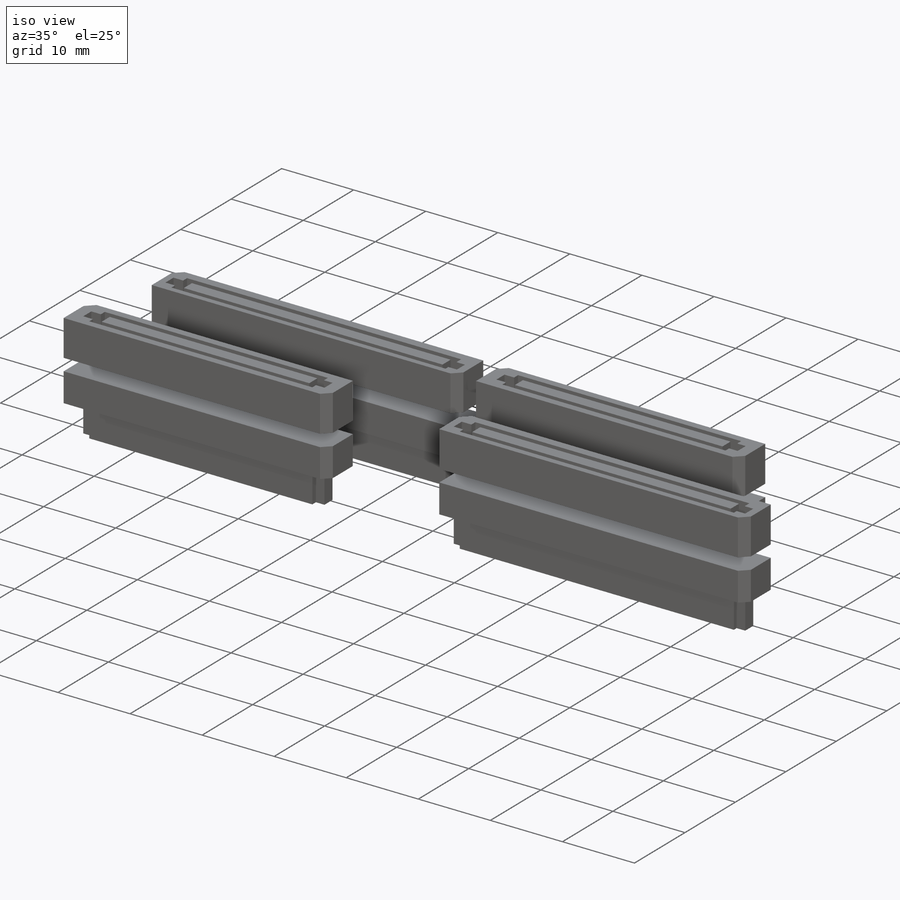
[diagram: iso view]
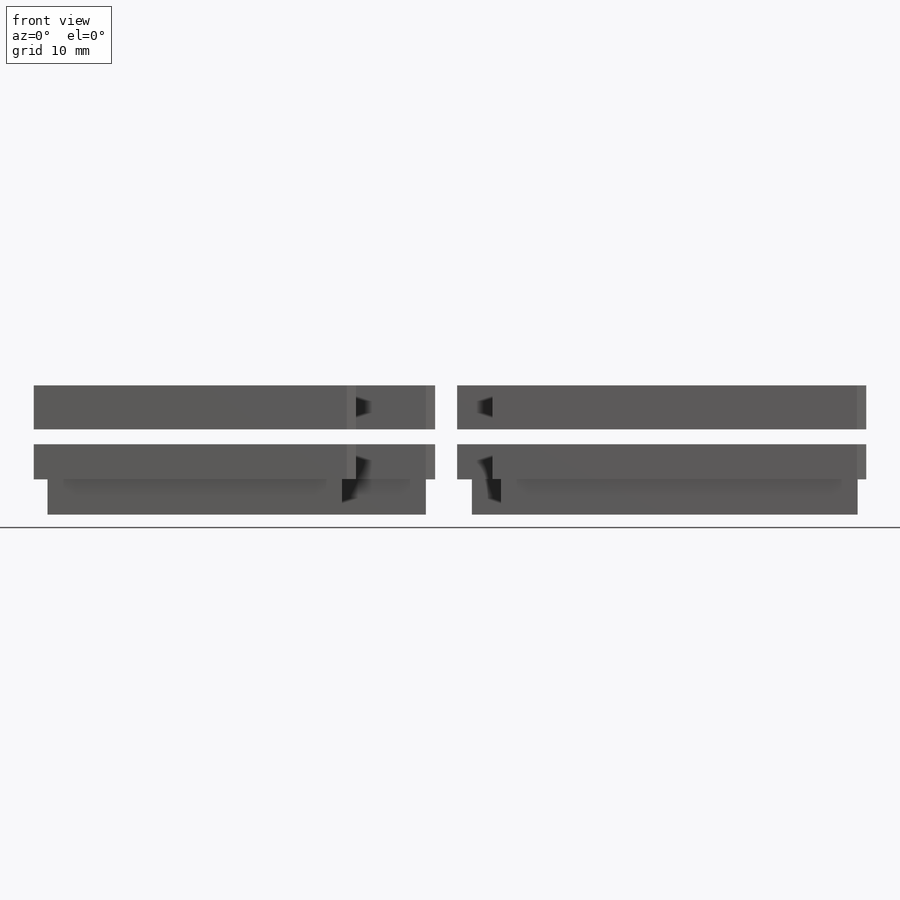
[diagram: front view]
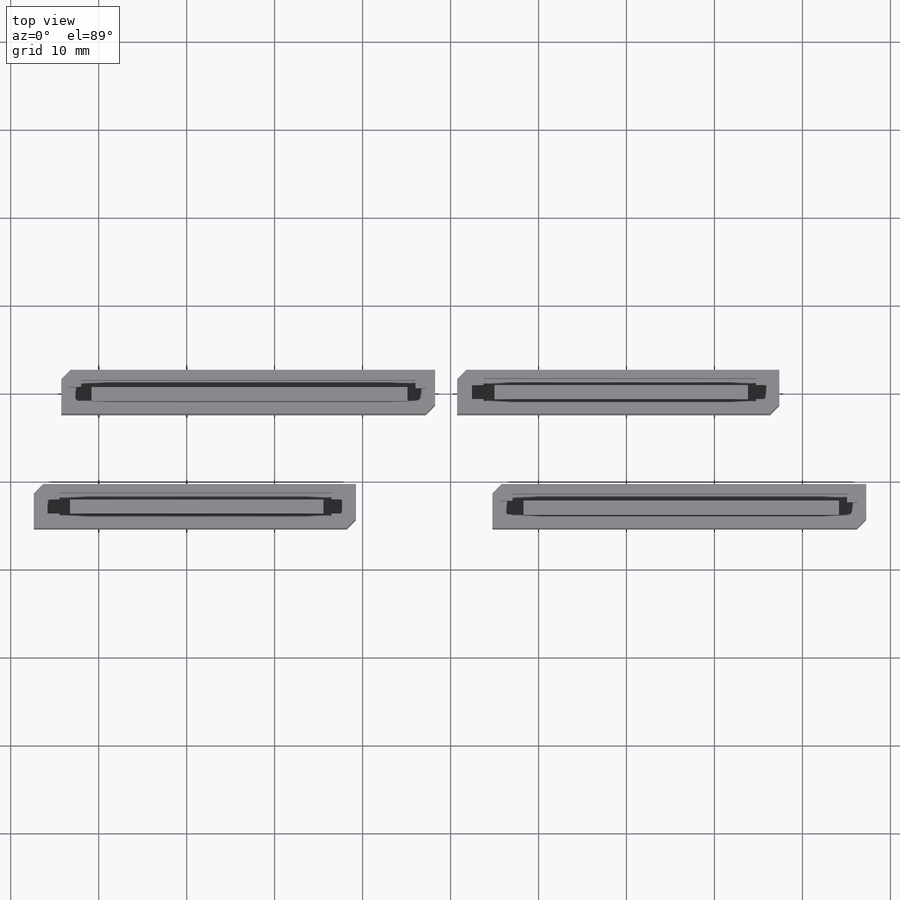
[diagram: top view]
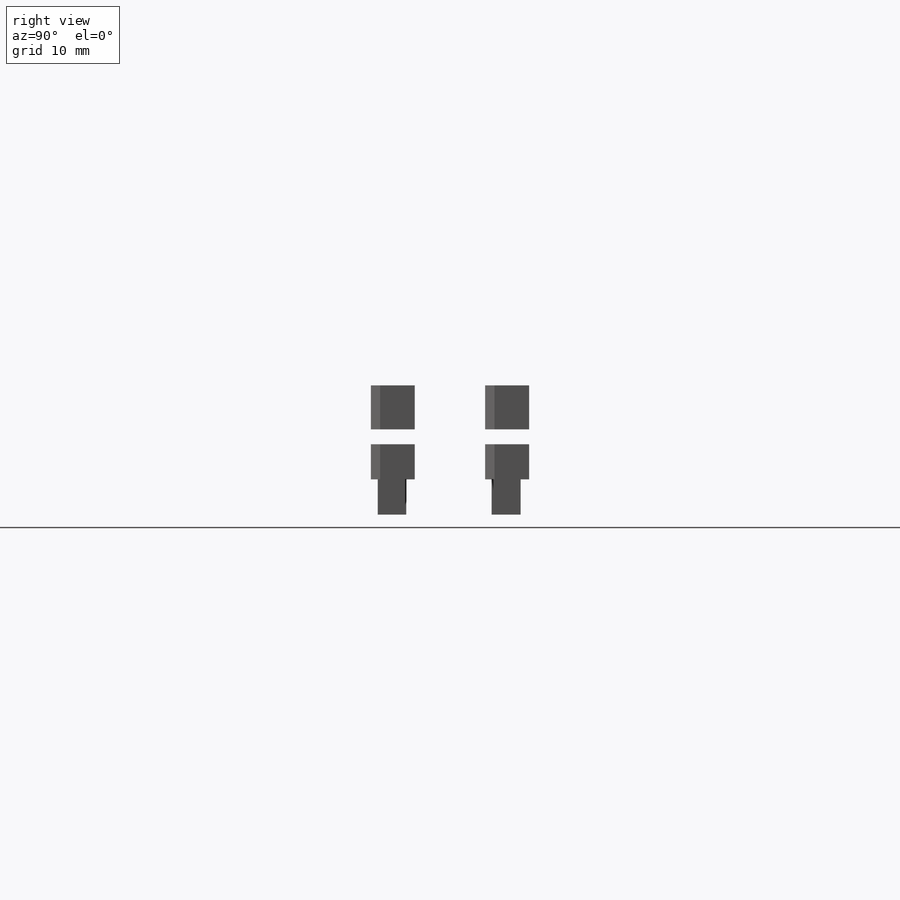
[diagram: right view]
SOLIDWORKS PART (.sldprt)
format: sldprt  version: not decoded by parser v0  size: 411,136 bytes
history: native  units: mm
features: sketch x4, extrude x3, plane x2, material x1, cut_extrude x1 (+11 scaffold rows collapsed)
feature tree (22):
  scaffold x11  (default folders/planes/origin — collapsed)
  material  "Material <not specified>"
  plane  "Plane1"  Offset=1.68656mm
  plane  "center-of-slot"
  sketch  "Sketch1"  dims[c1.D1=1.061mm c1.D2=45.0deg c1.D3=1.061mm c1.D4=45.0deg c1.D5=1.061mm c1.D6=45.0deg c1.D7=1.061mm c1.D8=45.0deg c2.D1=3.94mm]
  extrude  "SV"  Depth=5mm
  sketch  "Sketch3"
  cut_extrude  "Cut-Extrude1"  Depth=4mm
  sketch  "Sketch6"  dims[c1.D1=1.5mm c2.D1=45.0deg c3.D1=1.5mm c4.D1=45.0deg c5.D1=1.5mm c6.D1=45.0deg c7.D1=1.5mm c8.D1=45.0deg c9.D1=1.061mm c9.D2=45.0deg c10.D1=1.061mm c10.D2=45.0deg c10.D3=1.061mm c10.D4=45.0deg c11.D1=3.945mm]
  extrude  "SV4(a)"  Depth=4mm
  sketch  "Sketch7"
  extrude  "SV4(b)"  Depth=4mm
decode coverage: 6 of 8 modeling features carry decoded parameters
note: suppression state not decoded; provenance and decode notes live in map.json
